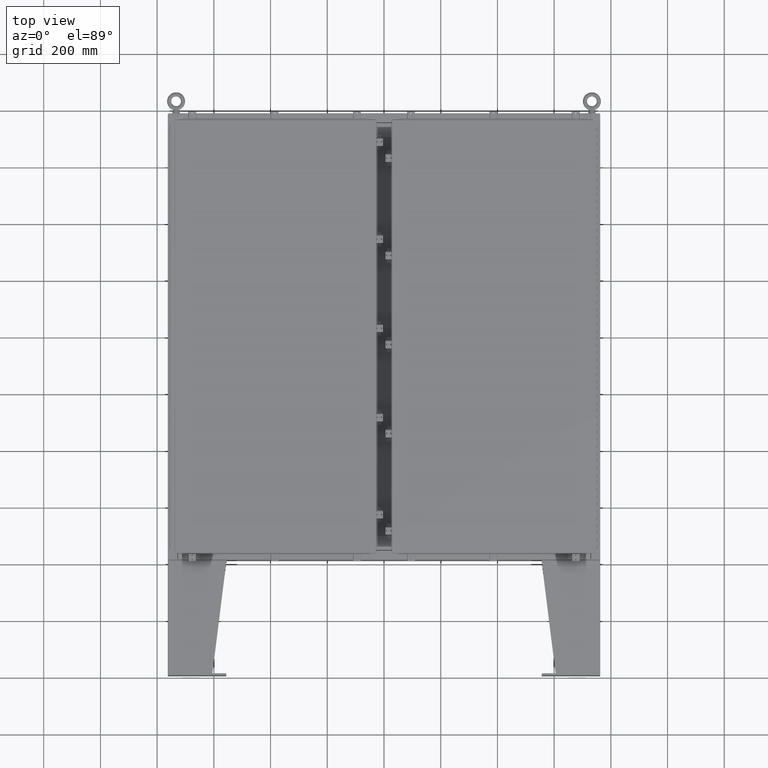
[diagram: clean part render]
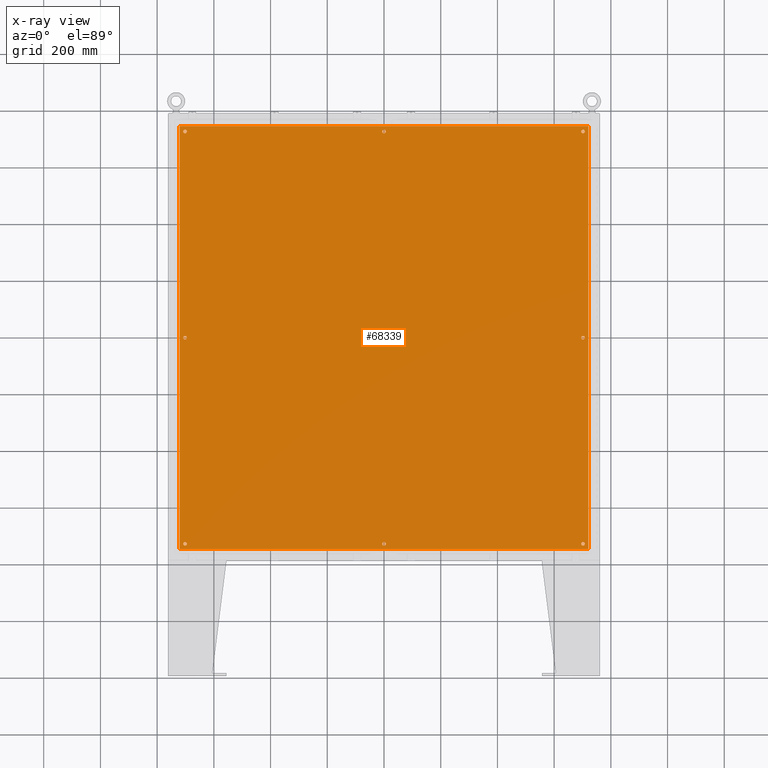
[diagram: x-ray — body ghosted, one internal face saturated and labeled with its STEP entity id]
A machine part, top view, then the same camera in x-ray: the body is ghosted and one INTERNAL B-rep face — a face not visible from any outside direction — is saturated and labeled: STEP entity #68339.
In plain terms, the highlighted planar face has unit normal (0, 0, -1).
Its self-contained STEP definition (entity closure, byte-faithful):
#182 = DIRECTION ( 'NONE',  ( -0.0000000000000000000, -0.0000000000000000000, 1.000000000000000000 ) ) ;
#748 = CIRCLE ( 'NONE', #6094, 0.2499999999999987000 ) ;
#883 = VERTEX_POINT ( 'NONE', #18141 ) ;
#1013 = CARTESIAN_POINT ( 'NONE',  ( -27.62500000000000400, -28.62500000000000700, -0.1039999999999999800 ) ) ;
#1092 = VERTEX_POINT ( 'NONE', #20477 ) ;
#1195 = AXIS2_PLACEMENT_3D ( 'NONE', #1478, #39110, #6898 ) ;
#1418 = VERTEX_POINT ( 'NONE', #28708 ) ;
#1478 = CARTESIAN_POINT ( 'NONE',  ( 0.0000000000000000000, 28.62500000000000700, -0.1039999999999999800 ) ) ;
#1485 = VERTEX_POINT ( 'NONE', #61974 ) ;
#1496 = DIRECTION ( 'NONE',  ( -1.000000000000000000, 0.0000000000000000000, 0.0000000000000000000 ) ) ;
#1773 = VERTEX_POINT ( 'NONE', #5265 ) ;
#2078 = FACE_OUTER_BOUND ( 'NONE', #24419, .T. ) ;
#2530 = CARTESIAN_POINT ( 'NONE',  ( -27.37500000000000400, -5.200841675074779300E-015, -0.1039999999999999800 ) ) ;
#3775 = FACE_BOUND ( 'NONE', #48472, .T. ) ;
#3884 = DIRECTION ( 'NONE',  ( -1.000000000000000000, 0.0000000000000000000, 0.0000000000000000000 ) ) ;
#4758 = CIRCLE ( 'NONE', #22237, 0.2499999999999998300 ) ;
#4881 = EDGE_CURVE ( 'NONE', #67681, #1485, #53433, .T. ) ;
#5162 = CARTESIAN_POINT ( 'NONE',  ( 27.87500000000000000, 28.62500000000001400, -0.1039999999999999800 ) ) ;
#5265 = CARTESIAN_POINT ( 'NONE',  ( 27.87500000000000000, 1.565331890214347700E-015, -0.1039999999999999800 ) ) ;
#5382 = CARTESIAN_POINT ( 'NONE',  ( -27.62500000000000400, -5.200841675074779300E-015, -0.1039999999999999800 ) ) ;
#6094 = AXIS2_PLACEMENT_3D ( 'NONE', #60652, #28426, #66011 ) ;
#6147 = LINE ( 'NONE', #13730, #18763 ) ;
#6388 = EDGE_CURVE ( 'NONE', #1773, #16150, #64152, .T. ) ;
#6416 = DIRECTION ( 'NONE',  ( -1.000000000000000000, 0.0000000000000000000, 0.0000000000000000000 ) ) ;
#6747 = CIRCLE ( 'NONE', #67634, 0.2499999999999987000 ) ;
#6757 = VERTEX_POINT ( 'NONE', #45454 ) ;
#6898 = DIRECTION ( 'NONE',  ( -1.000000000000000000, 0.0000000000000000000, 0.0000000000000000000 ) ) ;
#6935 = DIRECTION ( 'NONE',  ( -0.0000000000000000000, -0.0000000000000000000, 1.000000000000000000 ) ) ;
#7455 = ORIENTED_EDGE ( 'NONE', *, *, #57418, .T. ) ;
#9659 = ORIENTED_EDGE ( 'NONE', *, *, #26209, .F. ) ;
#10007 = ORIENTED_EDGE ( 'NONE', *, *, #33205, .T. ) ;
#10038 = EDGE_CURVE ( 'NONE', #41492, #51897, #11249, .T. ) ;
#10306 = AXIS2_PLACEMENT_3D ( 'NONE', #23226, #60875, #28693 ) ;
#10566 = CARTESIAN_POINT ( 'NONE',  ( -27.87500000000000000, -28.62500000000000700, -0.1039999999999999800 ) ) ;
#10789 = DIRECTION ( 'NONE',  ( -1.000000000000000000, 0.0000000000000000000, 0.0000000000000000000 ) ) ;
#11249 = CIRCLE ( 'NONE', #67209, 0.2499999999999987000 ) ;
#11537 = CIRCLE ( 'NONE', #50057, 0.2499999999999987000 ) ;
#11569 = EDGE_CURVE ( 'NONE', #36016, #29005, #16209, .T. ) ;
#11644 = EDGE_CURVE ( 'NONE', #1092, #883, #28861, .T. ) ;
#12167 = CARTESIAN_POINT ( 'NONE',  ( -27.87500000000000000, -5.170225505096096300E-015, -0.1039999999999999800 ) ) ;
#12809 = ORIENTED_EDGE ( 'NONE', *, *, #15018, .F. ) ;
#12879 = ORIENTED_EDGE ( 'NONE', *, *, #6388, .T. ) ;
#13520 = AXIS2_PLACEMENT_3D ( 'NONE', #5382, #43000, #10789 ) ;
#13574 = EDGE_LOOP ( 'NONE', ( #36562, #33642 ) ) ;
#13607 = AXIS2_PLACEMENT_3D ( 'NONE', #26217, #53848, #21604 ) ;
#13730 = CARTESIAN_POINT ( 'NONE',  ( -28.38299999999999600, 29.38299999999999200, -0.1039999999999921100 ) ) ;
#14351 = EDGE_LOOP ( 'NONE', ( #7455, #63556 ) ) ;
#14939 = AXIS2_PLACEMENT_3D ( 'NONE', #68290, #36073, #3884 ) ;
#15018 = EDGE_CURVE ( 'NONE', #6757, #40454, #6147, .T. ) ;
#15291 = DIRECTION ( 'NONE',  ( -0.0000000000000000000, -0.0000000000000000000, 1.000000000000000000 ) ) ;
#15956 = CIRCLE ( 'NONE', #68218, 0.2499999999999987000 ) ;
#16150 = VERTEX_POINT ( 'NONE', #59959 ) ;
#16209 = CIRCLE ( 'NONE', #27695, 0.2499999999999987000 ) ;
#16365 = FACE_BOUND ( 'NONE', #13574, .T. ) ;
#17422 = CIRCLE ( 'NONE', #51726, 0.2499999999999987000 ) ;
#17782 = EDGE_CURVE ( 'NONE', #50873, #18096, #6747, .T. ) ;
#18043 = FACE_BOUND ( 'NONE', #43779, .T. ) ;
#18096 = VERTEX_POINT ( 'NONE', #24634 ) ;
#18130 = VERTEX_POINT ( 'NONE', #67666 ) ;
#18141 = CARTESIAN_POINT ( 'NONE',  ( 0.2500000000000010000, -28.62500000000000700, -0.1039999999999999800 ) ) ;
#18763 = VECTOR ( 'NONE', #56775, 39.37007874015748100 ) ;
#19581 = AXIS2_PLACEMENT_3D ( 'NONE', #1013, #38636, #6416 ) ;
#20098 = CIRCLE ( 'NONE', #36457, 0.2500000000000010000 ) ;
#20477 = CARTESIAN_POINT ( 'NONE',  ( -0.2500000000000010000, -28.62500000000000700, -0.1039999999999999800 ) ) ;
#21048 = DIRECTION ( 'NONE',  ( -0.0000000000000000000, -0.0000000000000000000, 1.000000000000000000 ) ) ;
#21066 = EDGE_CURVE ( 'NONE', #29005, #36016, #64717, .T. ) ;
#21327 = EDGE_LOOP ( 'NONE', ( #31347, #34577 ) ) ;
#21604 = DIRECTION ( 'NONE',  ( -1.000000000000000000, 0.0000000000000000000, -0.0000000000000000000 ) ) ;
#22084 = CARTESIAN_POINT ( 'NONE',  ( -27.62500000000000400, 28.62500000000000700, -0.1039999999999999800 ) ) ;
#22237 = AXIS2_PLACEMENT_3D ( 'NONE', #62560, #30392, #67970 ) ;
#23226 = CARTESIAN_POINT ( 'NONE',  ( 27.62500000000000400, 28.62500000000001400, -0.1039999999999999800 ) ) ;
#23244 = EDGE_LOOP ( 'NONE', ( #51265, #47848 ) ) ;
#24046 = CIRCLE ( 'NONE', #19581, 0.2499999999999987000 ) ;
#24332 = CARTESIAN_POINT ( 'NONE',  ( -28.38299999999999600, -29.38299999999999600, -0.1040000000000009400 ) ) ;
#24419 = EDGE_LOOP ( 'NONE', ( #34385, #12809, #52873, #9659 ) ) ;
#24634 = CARTESIAN_POINT ( 'NONE',  ( -27.87500000000000000, 28.62500000000000700, -0.1039999999999999800 ) ) ;
#24797 = DIRECTION ( 'NONE',  ( -0.0000000000000000000, -0.0000000000000000000, 1.000000000000000000 ) ) ;
#26209 = EDGE_CURVE ( 'NONE', #37747, #1418, #41067, .T. ) ;
#26217 = CARTESIAN_POINT ( 'NONE',  ( 0.0000000000000000000, 0.0000000000000000000, -0.1039999999999999800 ) ) ;
#27085 = LINE ( 'NONE', #47981, #54016 ) ;
#27126 = EDGE_LOOP ( 'NONE', ( #57583, #62894 ) ) ;
#27494 = DIRECTION ( 'NONE',  ( -1.000000000000000000, 0.0000000000000000000, 0.0000000000000000000 ) ) ;
#27695 = AXIS2_PLACEMENT_3D ( 'NONE', #57031, #24797, #62425 ) ;
#28426 = DIRECTION ( 'NONE',  ( -0.0000000000000000000, -0.0000000000000000000, 1.000000000000000000 ) ) ;
#28462 = CIRCLE ( 'NONE', #10306, 0.2499999999999987000 ) ;
#28639 = LINE ( 'NONE', #31131, #57226 ) ;
#28693 = DIRECTION ( 'NONE',  ( -1.000000000000000000, 0.0000000000000000000, 0.0000000000000000000 ) ) ;
#28708 = CARTESIAN_POINT ( 'NONE',  ( 28.38300000000000600, 29.38299999999999200, -0.1040000000000009400 ) ) ;
#28861 = CIRCLE ( 'NONE', #52937, 0.2500000000000010000 ) ;
#29005 = VERTEX_POINT ( 'NONE', #2530 ) ;
#30392 = DIRECTION ( 'NONE',  ( -0.0000000000000000000, -0.0000000000000000000, 1.000000000000000000 ) ) ;
#30427 = CARTESIAN_POINT ( 'NONE',  ( 0.2499999999999998300, 28.62500000000000700, -0.1039999999999999800 ) ) ;
#30682 = CARTESIAN_POINT ( 'NONE',  ( -27.62500000000000400, -28.62500000000000700, -0.1039999999999999800 ) ) ;
#30693 = DIRECTION ( 'NONE',  ( -0.0000000000000000000, -0.0000000000000000000, 1.000000000000000000 ) ) ;
#30705 = FACE_BOUND ( 'NONE', #27126, .T. ) ;
#31131 = CARTESIAN_POINT ( 'NONE',  ( -28.50000000000000000, -29.38299999999999600, -0.1040000000000009400 ) ) ;
#31347 = ORIENTED_EDGE ( 'NONE', *, *, #52785, .T. ) ;
#31873 = EDGE_CURVE ( 'NONE', #1418, #6757, #27085, .T. ) ;
#32354 = FACE_BOUND ( 'NONE', #23244, .T. ) ;
#32395 = CARTESIAN_POINT ( 'NONE',  ( 27.62500000000000400, 28.62500000000001400, -0.1039999999999999800 ) ) ;
#32403 = VERTEX_POINT ( 'NONE', #5162 ) ;
#33205 = EDGE_CURVE ( 'NONE', #16150, #1773, #15956, .T. ) ;
#33642 = ORIENTED_EDGE ( 'NONE', *, *, #42805, .T. ) ;
#33692 = DIRECTION ( 'NONE',  ( -0.0000000000000000000, -0.0000000000000000000, 1.000000000000000000 ) ) ;
#33997 = CARTESIAN_POINT ( 'NONE',  ( 28.38300000000000600, -29.38299999999999200, -0.1040000000000009400 ) ) ;
#34385 = ORIENTED_EDGE ( 'NONE', *, *, #56754, .F. ) ;
#34577 = ORIENTED_EDGE ( 'NONE', *, *, #64627, .T. ) ;
#36016 = VERTEX_POINT ( 'NONE', #12167 ) ;
#36059 = DIRECTION ( 'NONE',  ( -1.000000000000000000, 0.0000000000000000000, 0.0000000000000000000 ) ) ;
#36073 = DIRECTION ( 'NONE',  ( -0.0000000000000000000, -0.0000000000000000000, 1.000000000000000000 ) ) ;
#36457 = AXIS2_PLACEMENT_3D ( 'NONE', #47458, #15291, #52923 ) ;
#36562 = ORIENTED_EDGE ( 'NONE', *, *, #17782, .T. ) ;
#36994 = CIRCLE ( 'NONE', #14939, 0.2499999999999987000 ) ;
#37747 = VERTEX_POINT ( 'NONE', #33997 ) ;
#37817 = DIRECTION ( 'NONE',  ( -1.000000000000000000, 0.0000000000000000000, 0.0000000000000000000 ) ) ;
#38636 = DIRECTION ( 'NONE',  ( -0.0000000000000000000, -0.0000000000000000000, 1.000000000000000000 ) ) ;
#39110 = DIRECTION ( 'NONE',  ( -0.0000000000000000000, -0.0000000000000000000, 1.000000000000000000 ) ) ;
#39143 = CARTESIAN_POINT ( 'NONE',  ( 27.62500000000000400, 1.565331890214347700E-015, -0.1039999999999999800 ) ) ;
#40454 = VERTEX_POINT ( 'NONE', #24332 ) ;
#41067 = LINE ( 'NONE', #49281, #53719 ) ;
#41492 = VERTEX_POINT ( 'NONE', #57272 ) ;
#42805 = EDGE_CURVE ( 'NONE', #18096, #50873, #748, .T. ) ;
#43000 = DIRECTION ( 'NONE',  ( -0.0000000000000000000, -0.0000000000000000000, 1.000000000000000000 ) ) ;
#43779 = EDGE_LOOP ( 'NONE', ( #12879, #10007 ) ) ;
#44251 = ORIENTED_EDGE ( 'NONE', *, *, #11569, .T. ) ;
#44529 = DIRECTION ( 'NONE',  ( -1.000000000000000000, 0.0000000000000000000, 0.0000000000000000000 ) ) ;
#44650 = ORIENTED_EDGE ( 'NONE', *, *, #4881, .T. ) ;
#44980 = FACE_BOUND ( 'NONE', #21327, .T. ) ;
#45454 = CARTESIAN_POINT ( 'NONE',  ( -28.38299999999999600, 29.38299999999999200, -0.1039999999999921100 ) ) ;
#47458 = CARTESIAN_POINT ( 'NONE',  ( 0.0000000000000000000, -28.62500000000000700, -0.1039999999999999800 ) ) ;
#47592 = CARTESIAN_POINT ( 'NONE',  ( 27.37500000000000400, 28.62500000000001400, -0.1039999999999999800 ) ) ;
#47848 = ORIENTED_EDGE ( 'NONE', *, *, #59392, .T. ) ;
#47981 = CARTESIAN_POINT ( 'NONE',  ( 28.50000000000000400, 29.38300000000000600, -0.1040000000000009400 ) ) ;
#48472 = EDGE_LOOP ( 'NONE', ( #44650, #65908 ) ) ;
#49281 = CARTESIAN_POINT ( 'NONE',  ( 28.38300000000000600, -29.38299999999999200, -0.1040000000000009400 ) ) ;
#49903 = EDGE_CURVE ( 'NONE', #32403, #62832, #11537, .T. ) ;
#50057 = AXIS2_PLACEMENT_3D ( 'NONE', #32395, #182, #37817 ) ;
#50873 = VERTEX_POINT ( 'NONE', #51328 ) ;
#51265 = ORIENTED_EDGE ( 'NONE', *, *, #10038, .T. ) ;
#51328 = CARTESIAN_POINT ( 'NONE',  ( -27.37500000000000400, 28.62500000000000700, -0.1039999999999999800 ) ) ;
#51726 = AXIS2_PLACEMENT_3D ( 'NONE', #30682, #68279, #36059 ) ;
#51897 = VERTEX_POINT ( 'NONE', #52274 ) ;
#52274 = CARTESIAN_POINT ( 'NONE',  ( 27.37500000000002100, -28.62499999999999600, -0.1039999999999999800 ) ) ;
#52355 = EDGE_CURVE ( 'NONE', #1485, #67681, #4758, .T. ) ;
#52785 = EDGE_CURVE ( 'NONE', #18130, #60146, #24046, .T. ) ;
#52873 = ORIENTED_EDGE ( 'NONE', *, *, #31873, .F. ) ;
#52923 = DIRECTION ( 'NONE',  ( -1.000000000000000000, 0.0000000000000000000, 0.0000000000000000000 ) ) ;
#52937 = AXIS2_PLACEMENT_3D ( 'NONE', #62889, #30693, #68287 ) ;
#53269 = CARTESIAN_POINT ( 'NONE',  ( 27.62500000000000400, 1.565331890214347700E-015, -0.1039999999999999800 ) ) ;
#53433 = CIRCLE ( 'NONE', #1195, 0.2499999999999998300 ) ;
#53719 = VECTOR ( 'NONE', #60150, 39.37007874015748100 ) ;
#53848 = DIRECTION ( 'NONE',  ( 0.0000000000000000000, 0.0000000000000000000, -1.000000000000000000 ) ) ;
#54016 = VECTOR ( 'NONE', #58857, 39.37007874015748100 ) ;
#56754 = EDGE_CURVE ( 'NONE', #40454, #37747, #28639, .T. ) ;
#56775 = DIRECTION ( 'NONE',  ( 0.0000000000000000000, -1.000000000000000000, 0.0000000000000000000 ) ) ;
#57031 = CARTESIAN_POINT ( 'NONE',  ( -27.62500000000000400, -5.200841675074779300E-015, -0.1039999999999999800 ) ) ;
#57226 = VECTOR ( 'NONE', #68742, 39.37007874015748100 ) ;
#57272 = CARTESIAN_POINT ( 'NONE',  ( 27.87500000000001800, -28.62499999999999600, -0.1039999999999999800 ) ) ;
#57418 = EDGE_CURVE ( 'NONE', #883, #1092, #20098, .T. ) ;
#57583 = ORIENTED_EDGE ( 'NONE', *, *, #49903, .T. ) ;
#58698 = DIRECTION ( 'NONE',  ( -1.000000000000000000, 0.0000000000000000000, 0.0000000000000000000 ) ) ;
#58857 = DIRECTION ( 'NONE',  ( -1.000000000000000000, -0.0000000000000000000, -0.0000000000000000000 ) ) ;
#59332 = FACE_BOUND ( 'NONE', #61292, .T. ) ;
#59392 = EDGE_CURVE ( 'NONE', #51897, #41492, #36994, .T. ) ;
#59744 = DIRECTION ( 'NONE',  ( -0.0000000000000000000, -0.0000000000000000000, 1.000000000000000000 ) ) ;
#59959 = CARTESIAN_POINT ( 'NONE',  ( 27.37500000000000400, 1.595948060193031100E-015, -0.1039999999999999800 ) ) ;
#60146 = VERTEX_POINT ( 'NONE', #10566 ) ;
#60150 = DIRECTION ( 'NONE',  ( 0.0000000000000000000, 1.000000000000000000, 0.0000000000000000000 ) ) ;
#60652 = CARTESIAN_POINT ( 'NONE',  ( -27.62500000000000400, 28.62500000000000700, -0.1039999999999999800 ) ) ;
#60875 = DIRECTION ( 'NONE',  ( -0.0000000000000000000, -0.0000000000000000000, 1.000000000000000000 ) ) ;
#60992 = FACE_BOUND ( 'NONE', #14351, .T. ) ;
#61292 = EDGE_LOOP ( 'NONE', ( #63584, #44251 ) ) ;
#61974 = CARTESIAN_POINT ( 'NONE',  ( -0.2499999999999998300, 28.62500000000000700, -0.1039999999999999800 ) ) ;
#62425 = DIRECTION ( 'NONE',  ( -1.000000000000000000, 0.0000000000000000000, 0.0000000000000000000 ) ) ;
#62560 = CARTESIAN_POINT ( 'NONE',  ( 0.0000000000000000000, 28.62500000000000700, -0.1039999999999999800 ) ) ;
#62832 = VERTEX_POINT ( 'NONE', #47592 ) ;
#62889 = CARTESIAN_POINT ( 'NONE',  ( 0.0000000000000000000, -28.62500000000000700, -0.1039999999999999800 ) ) ;
#62894 = ORIENTED_EDGE ( 'NONE', *, *, #65505, .T. ) ;
#63556 = ORIENTED_EDGE ( 'NONE', *, *, #11644, .T. ) ;
#63584 = ORIENTED_EDGE ( 'NONE', *, *, #21066, .T. ) ;
#64152 = CIRCLE ( 'NONE', #66598, 0.2499999999999987000 ) ;
#64393 = PLANE ( 'NONE',  #13607 ) ;
#64627 = EDGE_CURVE ( 'NONE', #60146, #18130, #17422, .T. ) ;
#64717 = CIRCLE ( 'NONE', #13520, 0.2499999999999987000 ) ;
#65505 = EDGE_CURVE ( 'NONE', #62832, #32403, #28462, .T. ) ;
#65894 = CARTESIAN_POINT ( 'NONE',  ( 27.62500000000002100, -28.62499999999999600, -0.1039999999999999800 ) ) ;
#65908 = ORIENTED_EDGE ( 'NONE', *, *, #52355, .T. ) ;
#66011 = DIRECTION ( 'NONE',  ( -1.000000000000000000, 0.0000000000000000000, 0.0000000000000000000 ) ) ;
#66598 = AXIS2_PLACEMENT_3D ( 'NONE', #53269, #21048, #58698 ) ;
#67209 = AXIS2_PLACEMENT_3D ( 'NONE', #65894, #33692, #1496 ) ;
#67634 = AXIS2_PLACEMENT_3D ( 'NONE', #22084, #59744, #27494 ) ;
#67666 = CARTESIAN_POINT ( 'NONE',  ( -27.37500000000000400, -28.62500000000000700, -0.1039999999999999800 ) ) ;
#67681 = VERTEX_POINT ( 'NONE', #30427 ) ;
#67970 = DIRECTION ( 'NONE',  ( -1.000000000000000000, 0.0000000000000000000, 0.0000000000000000000 ) ) ;
#68218 = AXIS2_PLACEMENT_3D ( 'NONE', #39143, #6935, #44529 ) ;
#68279 = DIRECTION ( 'NONE',  ( -0.0000000000000000000, -0.0000000000000000000, 1.000000000000000000 ) ) ;
#68287 = DIRECTION ( 'NONE',  ( -1.000000000000000000, 0.0000000000000000000, 0.0000000000000000000 ) ) ;
#68290 = CARTESIAN_POINT ( 'NONE',  ( 27.62500000000002100, -28.62499999999999600, -0.1039999999999999800 ) ) ;
#68339 = ADVANCED_FACE ( 'NONE', ( #60992, #3775, #18043, #59332, #44980, #32354, #30705, #16365, #2078 ), #64393, .T. ) ;
#68742 = DIRECTION ( 'NONE',  ( 1.000000000000000000, -0.0000000000000000000, -0.0000000000000000000 ) ) ;